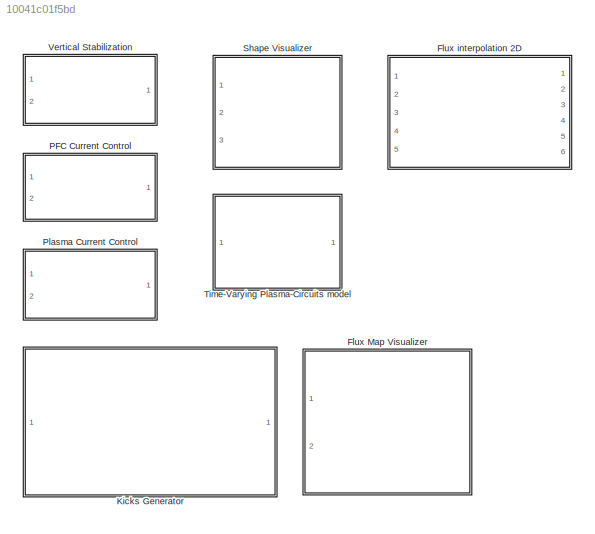
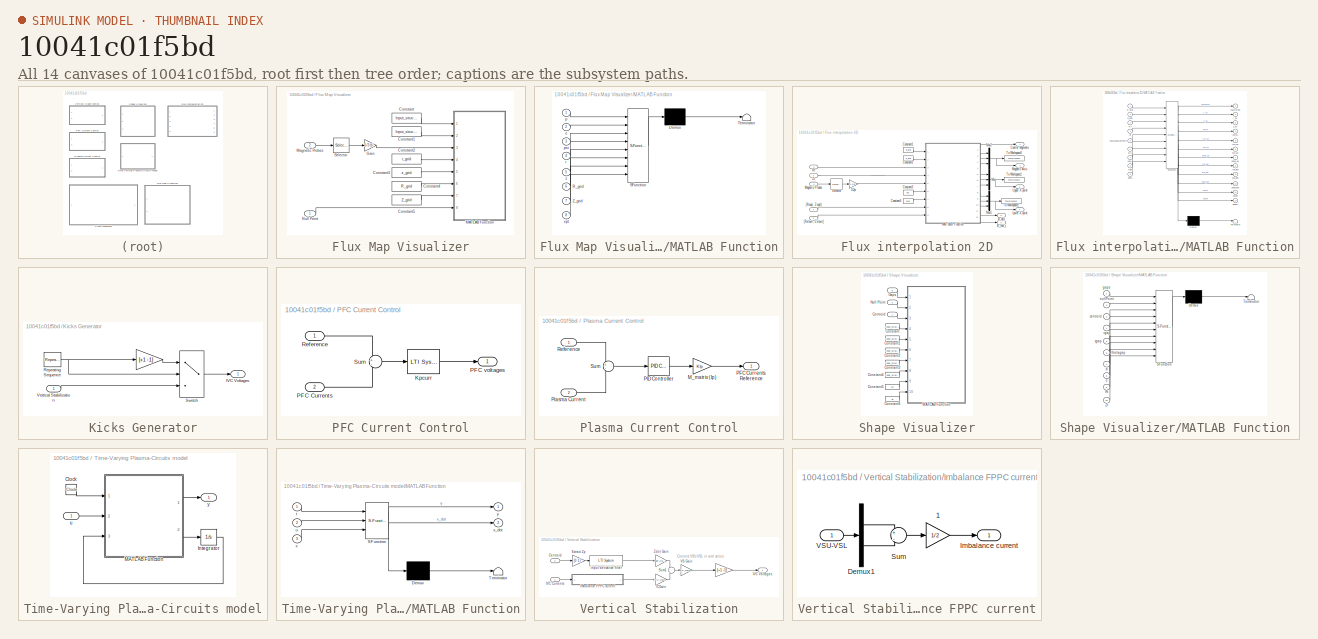
[diagram: thumbnail index - all 14 canvases of the model, root first then tree order]
MODEL slx_10041c01f5bd
KIND library
CONFIG AbsTol = auto
CONFIG EnableMultiTasking = on
CONFIG FixedStep = auto
CONFIG MaxStep = auto
CONFIG MinStep = auto
CONFIG RelTol = 1e-3
CONFIG SampleTimeConstraint = Unconstrained
CONFIG Solver = ode45
CONFIG SolverName = ode45
CONFIG StartTime = 0.0
CONFIG StopTime = 10.0
BLOCK [SubSystem] Flux Map Visualizer
  InitFcn = oldDir = pwd;\ncd ./flux_grid_functions\n[r_grid, z_grid, R_grid, Z_grid, F0, idxGrid] = initFluxGrid(Input_struct,y_np,y_type, mag, 0);\ncd(oldDir);
  Ports = [2]
  RequestExecContextInheritance = off
  StartFcn = % fig_grid= figure()
BLOCK [Constant] Flux Map Visualizer/Constant
  Value = Input_struct.p
BLOCK [Constant] Flux Map Visualizer/Constant1
  Value = Input_struct.e
BLOCK [Constant] Flux Map Visualizer/Constant2
  Value = r_grid
BLOCK [Constant] Flux Map Visualizer/Constant3
  Value = z_grid
BLOCK [Constant] Flux Map Visualizer/Constant4
  Value = R_grid
BLOCK [Constant] Flux Map Visualizer/Constant5
  Value = Z_grid
BLOCK [Gain] Flux Map Visualizer/Gain
  Gain = 1/2/pi
  OutDataTypeStr = Inherit: Inherit via internal rule
  ParamDataTypeStr = Inherit: Inherit via internal rule
  SaturateOnIntegerOverflow = off
BLOCK [SubSystem] Flux Map Visualizer/MATLAB Function
  ErrorFcn = Stateflow.Translate.translate
  PermitHierarchicalResolution = ExplicitOnly
  Ports = [8]
  RequestExecContextInheritance = off
  SFBlockType = MATLAB Function
  SystemSampleTime = 5e-2
  TreatAsAtomicUnit = on
BLOCK [Demux] Flux Map Visualizer/MATLAB Function/ Demux 
  Outputs = 1
  Ports = [1, 1]
BLOCK [S-Function] Flux Map Visualizer/MATLAB Function/ SFunction 
  EnableBusSupport = off
  FunctionName = sf_sfun
  PortCounts = [8 1]
  Ports = [8, 1]
  SFcnIsStateOwnerBlock = off
  SFunctionDeploymentMode = off
  Tag = Stateflow S-Function JT60SA_Magnetic_Control 3
BLOCK [Terminator] Flux Map Visualizer/MATLAB Function/ Terminator 
BLOCK [Inport] Flux Map Visualizer/MATLAB Function/R_grid
  IconDisplay = Port number
  Port = 6
BLOCK [Inport] Flux Map Visualizer/MATLAB Function/Z_grid
  IconDisplay = Port number
  Port = 7
BLOCK [Inport] Flux Map Visualizer/MATLAB Function/e
  IconDisplay = Port number
  Port = 2
BLOCK [Inport] Flux Map Visualizer/MATLAB Function/p
  IconDisplay = Port number
BLOCK [Inport] Flux Map Visualizer/MATLAB Function/psi
  IconDisplay = Port number
  Port = 3
BLOCK [Inport] Flux Map Visualizer/MATLAB Function/r
  IconDisplay = Port number
  Port = 4
BLOCK [Inport] Flux Map Visualizer/MATLAB Function/xpt
  IconDisplay = Port number
  Port = 8
BLOCK [Inport] Flux Map Visualizer/MATLAB Function/z
  IconDisplay = Port number
  Port = 5
BLOCK [Inport] Flux Map Visualizer/Magnetic Probes
  IconDisplay = Port number
  Port = 2
BLOCK [Inport] Flux Map Visualizer/Null Point
  IconDisplay = Port number
BLOCK [Selector] Flux Map Visualizer/Selector
  IndexOptions = Index vector (dialog)
  Indices = idxGrid
  InputPortWidth = nMag
  OutputSizes = 1
  Ports = [1, 1]
BLOCK [SubSystem] Flux interpolation 2D
  Description = This block allows to interpolate the flux map over a set of given control points.\n\nThe user must define Rt and Zt, which are 2 vectors of 20 elements which contain the coordinates\nof the desired control points (only non-zero coordinate are used). Furthermore, the user must\ndefine the desired position for the upper and lower X-points, [Rxupt, Zxupt] and [Rxlowt, Zxlowt]. \nThe target points may be t...<+12ch>
  InitFcn = oldDir = pwd;\ncd ./flux_grid_functions\n[r_grid, z_grid, R_grid, Z_grid, F0, idxGrid] = initFluxGrid(Input_struct,y_np,y_type, mag, 0);\n\nxpLow_guess = [Null0(1) -abs(Null0(2))];\n[RBoxL, ZBoxL, irowL, icolL, maskL] = initXBox(xpLow_guess, R_grid, Z_grid);\niLow = [irowL; icolL];\n\nxpUp_guess = [Null0(1) +abs(Null0(2))];\n[RBoxU, ZBoxU, irowU, icolU, maskU] = initXBox(xpUp_guess, R_grid, Z_grid);\niUp = ...<+28ch>
  Ports = [5, 6]
  RequestExecContextInheritance = off
BLOCK [Gain] Flux interpolation 2D/1//2pi
  Gain = 1/2/pi
  OutDataTypeStr = Inherit: Inherit via internal rule
  ParamDataTypeStr = Inherit: Inherit via internal rule
  SaturateOnIntegerOverflow = off
BLOCK [Outport] Flux interpolation 2D/B_low_t
  IconDisplay = Port number
  Port = 6
BLOCK [Outport] Flux interpolation 2D/B_up_t
  IconDisplay = Port number
  Port = 5
BLOCK [Constant] Flux interpolation 2D/Constant1
  Value = R_grid
BLOCK [Constant] Flux interpolation 2D/Constant2
  Value = Z_grid
BLOCK [Constant] Flux interpolation 2D/Constant3
  Value = iUp
BLOCK [Constant] Flux interpolation 2D/Constant4
  Value = iLow
BLOCK [Outport] Flux interpolation 2D/Control segments
  IconDisplay = Port number
BLOCK [Outport] Flux interpolation 2D/Lower X-point
  IconDisplay = Port number
  Port = 4
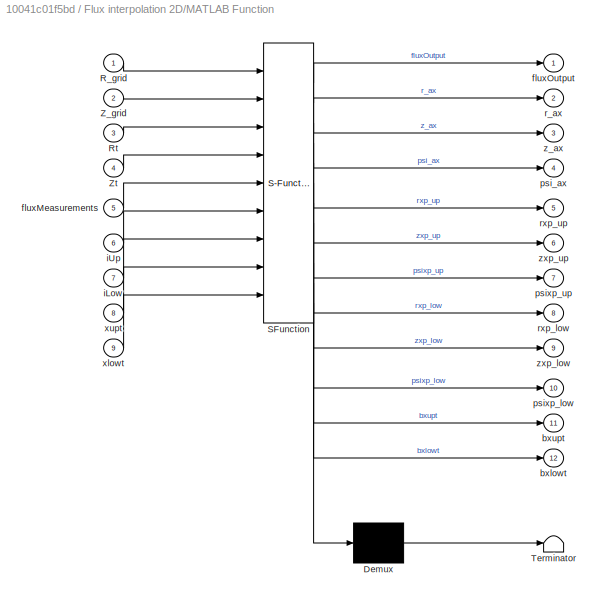
BLOCK [SubSystem] Flux interpolation 2D/MATLAB Function
  ErrorFcn = Stateflow.Translate.translate
  PermitHierarchicalResolution = ExplicitOnly
  Ports = [9, 12]
  RequestExecContextInheritance = off
  SFBlockType = MATLAB Function
  TreatAsAtomicUnit = on
BLOCK [Demux] Flux interpolation 2D/MATLAB Function/ Demux 
  Outputs = 1
  Ports = [1, 1]
BLOCK [S-Function] Flux interpolation 2D/MATLAB Function/ SFunction 
  EnableBusSupport = off
  FunctionName = sf_sfun
  PortCounts = [9 13]
  Ports = [9, 13]
  SFcnIsStateOwnerBlock = off
  SFunctionDeploymentMode = off
  Tag = Stateflow S-Function JT60SA_Magnetic_Control 4
BLOCK [Terminator] Flux interpolation 2D/MATLAB Function/ Terminator 
BLOCK [Inport] Flux interpolation 2D/MATLAB Function/R_grid
  IconDisplay = Port number
BLOCK [Inport] Flux interpolation 2D/MATLAB Function/Rt
  IconDisplay = Port number
  Port = 3
BLOCK [Inport] Flux interpolation 2D/MATLAB Function/Z_grid
  IconDisplay = Port number
  Port = 2
BLOCK [Inport] Flux interpolation 2D/MATLAB Function/Zt
  IconDisplay = Port number
  Port = 4
BLOCK [Outport] Flux interpolation 2D/MATLAB Function/bxlowt
  IconDisplay = Port number
  Port = 12
BLOCK [Outport] Flux interpolation 2D/MATLAB Function/bxupt
  IconDisplay = Port number
  Port = 11
BLOCK [Inport] Flux interpolation 2D/MATLAB Function/fluxMeasurements
  IconDisplay = Port number
  Port = 5
BLOCK [Outport] Flux interpolation 2D/MATLAB Function/fluxOutput
  IconDisplay = Port number
BLOCK [Inport] Flux interpolation 2D/MATLAB Function/iLow
  IconDisplay = Port number
  Port = 7
BLOCK [Inport] Flux interpolation 2D/MATLAB Function/iUp
  IconDisplay = Port number
  Port = 6
BLOCK [Outport] Flux interpolation 2D/MATLAB Function/psi_ax
  IconDisplay = Port number
  Port = 4
BLOCK [Outport] Flux interpolation 2D/MATLAB Function/psixp_low
  IconDisplay = Port number
  Port = 10
BLOCK [Outport] Flux interpolation 2D/MATLAB Function/psixp_up
  IconDisplay = Port number
  Port = 7
BLOCK [Outport] Flux interpolation 2D/MATLAB Function/r_ax
  IconDisplay = Port number
  Port = 2
BLOCK [Outport] Flux interpolation 2D/MATLAB Function/rxp_low
  IconDisplay = Port number
  Port = 8
BLOCK [Outport] Flux interpolation 2D/MATLAB Function/rxp_up
  IconDisplay = Port number
  Port = 5
BLOCK [Inport] Flux interpolation 2D/MATLAB Function/xlowt
  IconDisplay = Port number
  Port = 9
BLOCK [Inport] Flux interpolation 2D/MATLAB Function/xupt
  IconDisplay = Port number
  Port = 8
BLOCK [Outport] Flux interpolation 2D/MATLAB Function/z_ax
  IconDisplay = Port number
  Port = 3
BLOCK [Outport] Flux interpolation 2D/MATLAB Function/zxp_low
  IconDisplay = Port number
  Port = 9
BLOCK [Outport] Flux interpolation 2D/MATLAB Function/zxp_up
  IconDisplay = Port number
  Port = 6
BLOCK [Outport] Flux interpolation 2D/Magnetic Axis
  IconDisplay = Port number
  Port = 2
BLOCK [Inport] Flux interpolation 2D/Magnetic Probes
  IconDisplay = Port number
BLOCK [Mux] Flux interpolation 2D/Mux
  DisplayOption = bar
  Inputs = 3
  Ports = [3, 1]
BLOCK [Mux] Flux interpolation 2D/Mux1
  DisplayOption = bar
  Inputs = 3
  Ports = [3, 1]
BLOCK [Mux] Flux interpolation 2D/Mux2
  DisplayOption = bar
  Inputs = 3
  Ports = [3, 1]
BLOCK [Inport] Flux interpolation 2D/Rt
  IconDisplay = Port number
  Port = 2
BLOCK [Selector] Flux interpolation 2D/Selector
  IndexOptions = Index vector (dialog)
  Indices = idxGrid
  InputPortWidth = nMag
  OutputSizes = 1
  Ports = [1, 1]
BLOCK [ToWorkspace] Flux interpolation 2D/To Workspace1
  FixptAsFi = on
  MaxDataPoints = inf
  Ports = [1]
  SampleTime = -1
  SaveFormat = Structure With Time
  VariableName = grid_xup
BLOCK [ToWorkspace] Flux interpolation 2D/To Workspace2
  FixptAsFi = on
  MaxDataPoints = inf
  Ports = [1]
  SampleTime = -1
  SaveFormat = Structure With Time
  VariableName = grid_xlow
BLOCK [ToWorkspace] Flux interpolation 2D/To Workspace3
  FixptAsFi = on
  MaxDataPoints = inf
  Ports = [1]
  SampleTime = -1
  SaveFormat = Structure With Time
  VariableName = grid_ax
BLOCK [Outport] Flux interpolation 2D/Upper X-point
  IconDisplay = Port number
  Port = 3
BLOCK [Inport] Flux interpolation 2D/Zt
  IconDisplay = Port number
  Port = 3
BLOCK [Inport] Flux interpolation 2D/[Rxlowt, Zxlowt]
  IconDisplay = Port number
  Port = 5
BLOCK [Inport] Flux interpolation 2D/[Rxupt, Zxupt]
  IconDisplay = Port number
  Port = 4
BLOCK [SubSystem] Kicks Generator
  Ports = [1, 1]
  RequestExecContextInheritance = off
BLOCK [Gain] Kicks Generator/    
  Gain = [+1 -1]
  OutDataTypeStr = Inherit: Inherit via internal rule
  ParamDataTypeStr = Inherit: Inherit via internal rule
  SaturateOnIntegerOverflow = off
BLOCK [Outport] Kicks Generator/IVC Voltages
  IconDisplay = Port number
BLOCK [Reference] Kicks Generator/Repeating Sequence  REF=simulink/Sources/Repeating
Sequence
  Ports = [0, 1]
  SourceBlock = simulink/Sources/Repeating\nSequence
  SourceProductBaseCode = SL
  SourceProductName = Simulink
  SourceType = Repeating table
BLOCK [Switch] Kicks Generator/Switch
  Criteria = u2 ~= 0
  InputSameDT = off
  SaturateOnIntegerOverflow = off
BLOCK [Inport] Kicks Generator/Vertical Stabilization
  IconDisplay = Port number
BLOCK [SubSystem] PFC Current Control
  InitFcn = % PFC Current Control\nKpcurr = [5.7832    1.2410     0           0           0            0          0.8592   0            0            0\n               1.2410    5.7862    1.2432    0           0            0          0           0            0            0\n               0            1.2432    5.7865    1.2414   0            0          0           0            0            0\n               0    ...<+872ch>
  Ports = [2, 1]
  RequestExecContextInheritance = off
BLOCK [Reference] PFC Current Control/Kpcurr  REF=cstblocks/LTI System
  Ports = [1, 1]
  SourceBlock = cstblocks/LTI System
  SourceProductBaseCode = CT
  SourceProductName = Control System Toolbox
  SourceType = LTI Block
BLOCK [Inport] PFC Current Control/PFC Currents
  IconDisplay = Port number
  Port = 2
BLOCK [Outport] PFC Current Control/PFC voltages
  IconDisplay = Port number
BLOCK [Inport] PFC Current Control/Reference
  IconDisplay = Port number
BLOCK [Sum] PFC Current Control/Sum
  IconShape = round
  InputSameDT = off
  Inputs = +-
  OutDataTypeStr = Inherit: Inherit via internal rule
  Ports = [2, 1]
  SaturateOnIntegerOverflow = off
BLOCK [SubSystem] Plasma Current Control
  InitFcn = % Ip Control\n KIp= [-0.4984  -0.4327  -0.4393 -0.4969  -0.0241 ...\n        -0.0268  -0.2920  -0.1886  -0.0465  -0.0151]'; % Transformer currents pattern
  Ports = [2, 1]
  RequestExecContextInheritance = off
BLOCK [Gain] Plasma Current Control/M_matrix (Ip)
  Gain = KIp
  OutDataTypeStr = Inherit: Inherit via internal rule
  ParamDataTypeStr = Inherit: Inherit via internal rule
  SaturateOnIntegerOverflow = off
BLOCK [Outport] Plasma Current Control/PFC Currents Reference
  IconDisplay = Port number
BLOCK [Reference] Plasma Current Control/PID Controller  REF=simulink/Continuous/PID Controller
  Ports = [1, 1]
  SourceBlock = simulink/Continuous/PID Controller
  SourceProductBaseCode = SL
  SourceProductName = Simulink
  SourceType = PID 1dof
BLOCK [Inport] Plasma Current Control/Plasma Current
  IconDisplay = Port number
  Port = 2
BLOCK [Inport] Plasma Current Control/Reference
  IconDisplay = Port number
BLOCK [Sum] Plasma Current Control/Sum
  IconShape = round
  InputSameDT = off
  Inputs = +-
  OutDataTypeStr = Inherit: Inherit via internal rule
  Ports = [2, 1]
  SaturateOnIntegerOverflow = off
BLOCK [SubSystem] Shape Visualizer
  Ports = [3]
  RequestExecContextInheritance = off
  StartFcn = plasmaShape = figure('Position',[800, 0, 450, 650]);\nxlabel('R');\nylabel('Z');\n\n%h = pdemesh(Input_struct.p,Input_struct.e,[]);\n%set(h,'Color','black');\n%axis([0, 6, -4.5, 4.5]);\n%axis equal;\n%hold on\n\n%plasmaShape.UserData.plot = plot(zeros(nGaps,1), zeros(nGaps,1));
BLOCK [Inport] Shape Visualizer/Centroid
  IconDisplay = Port number
  OutDataTypeStr = double
  SampleTime = .05
BLOCK [Constant] Shape Visualizer/Constant
  Value = Input_struct.r_sens_gap;
BLOCK [Constant] Shape Visualizer/Constant1
  Value = Input_struct.z_sens_gap;
BLOCK [Constant] Shape Visualizer/Constant2
  Value = Input_struct.theta_sens_gap_deg
BLOCK [Constant] Shape Visualizer/Constant3
  Value = Input_struct.p
BLOCK [Constant] Shape Visualizer/Constant4
  Value = Input_struct.e
BLOCK [Constant] Shape Visualizer/Constant5
  Value = Rt
BLOCK [Constant] Shape Visualizer/Constant6
  Value = Zt
BLOCK [Inport] Shape Visualizer/Gaps
  IconDisplay = Port number
  OutDataTypeStr = double
  Port = 3
  SampleTime = .05
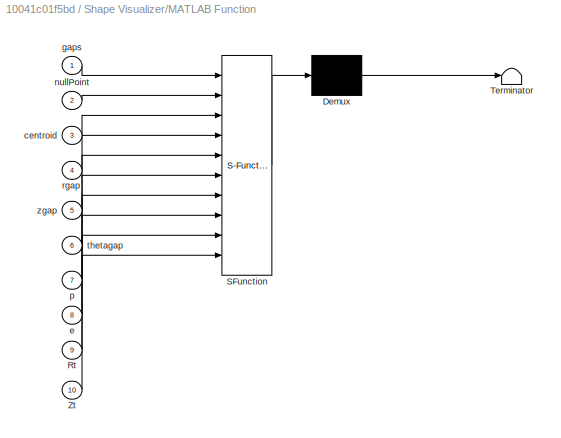
BLOCK [SubSystem] Shape Visualizer/MATLAB Function
  ErrorFcn = Stateflow.Translate.translate
  PermitHierarchicalResolution = ExplicitOnly
  Ports = [10]
  RequestExecContextInheritance = off
  SFBlockType = MATLAB Function
  TreatAsAtomicUnit = on
BLOCK [Demux] Shape Visualizer/MATLAB Function/ Demux 
  Outputs = 1
  Ports = [1, 1]
BLOCK [S-Function] Shape Visualizer/MATLAB Function/ SFunction 
  EnableBusSupport = off
  FunctionName = sf_sfun
  PortCounts = [10 1]
  Ports = [10, 1]
  SFcnIsStateOwnerBlock = off
  SFunctionDeploymentMode = off
  Tag = Stateflow S-Function JT60SA_Magnetic_Control 2
BLOCK [Terminator] Shape Visualizer/MATLAB Function/ Terminator 
BLOCK [Inport] Shape Visualizer/MATLAB Function/Rt
  IconDisplay = Port number
  Port = 9
BLOCK [Inport] Shape Visualizer/MATLAB Function/Zt
  IconDisplay = Port number
  Port = 10
BLOCK [Inport] Shape Visualizer/MATLAB Function/centroid
  IconDisplay = Port number
  Port = 3
BLOCK [Inport] Shape Visualizer/MATLAB Function/e
  IconDisplay = Port number
  Port = 8
BLOCK [Inport] Shape Visualizer/MATLAB Function/gaps
  IconDisplay = Port number
BLOCK [Inport] Shape Visualizer/MATLAB Function/nullPoint
  IconDisplay = Port number
  Port = 2
BLOCK [Inport] Shape Visualizer/MATLAB Function/p
  IconDisplay = Port number
  Port = 7
BLOCK [Inport] Shape Visualizer/MATLAB Function/rgap
  IconDisplay = Port number
  Port = 4
BLOCK [Inport] Shape Visualizer/MATLAB Function/thetagap
  IconDisplay = Port number
  Port = 6
BLOCK [Inport] Shape Visualizer/MATLAB Function/zgap
  IconDisplay = Port number
  Port = 5
BLOCK [Inport] Shape Visualizer/Null Point
  IconDisplay = Port number
  OutDataTypeStr = double
  Port = 2
  SampleTime = .05
BLOCK [SubSystem] Time-Varying Plasma-Circuits model
  CopyFcn = if ~exist('equ_struct', 'var')\n  try\n      firstEquil = [pathName, fileName];\n  catch\n  end\n\n  addpath(['.' filesep 'time-varying_model'])\n  gen_equil_struct;\nelse\n  warndlg('Equilibria structure already exists!')\nend
  DeleteFcn = clear equ_struct
  InitFcn = if ~exist('equ_struct', 'var')\n  try\n      firstEquil = [pathName, fileName];\n  catch\n  end\n\n  addpath(['.' filesep 'time-varying_model'])\n  gen_equil_struct;\n\nelse\n  warndlg('Equilibria structure already exists!');\nend
  Ports = [1, 1]
  RequestExecContextInheritance = off
BLOCK [Clock] Time-Varying Plasma-Circuits model/Clock
BLOCK [Integrator] Time-Varying Plasma-Circuits model/Integrator
  Ports = [1, 1]
BLOCK [SubSystem] Time-Varying Plasma-Circuits model/MATLAB Function
  ErrorFcn = Stateflow.Translate.translate
  PermitHierarchicalResolution = ExplicitOnly
  Ports = [3, 2]
  RequestExecContextInheritance = off
  SFBlockType = MATLAB Function
  TreatAsAtomicUnit = on
BLOCK [Demux] Time-Varying Plasma-Circuits model/MATLAB Function/ Demux 
  Outputs = 1
  Ports = [1, 1]
BLOCK [S-Function] Time-Varying Plasma-Circuits model/MATLAB Function/ SFunction 
  EnableBusSupport = off
  FunctionName = sf_sfun
  Parameters = equ_struct
  PortCounts = [3 3]
  Ports = [3, 3]
  SFcnIsStateOwnerBlock = off
  SFunctionDeploymentMode = off
  Tag = Stateflow S-Function JT60SA_Magnetic_Control 1
BLOCK [Terminator] Time-Varying Plasma-Circuits model/MATLAB Function/ Terminator 
BLOCK [Inport] Time-Varying Plasma-Circuits model/MATLAB Function/t
  IconDisplay = Port number
BLOCK [Inport] Time-Varying Plasma-Circuits model/MATLAB Function/u
  IconDisplay = Port number
  Port = 2
BLOCK [Inport] Time-Varying Plasma-Circuits model/MATLAB Function/x
  IconDisplay = Port number
  Port = 3
BLOCK [Outport] Time-Varying Plasma-Circuits model/MATLAB Function/x_dot
  IconDisplay = Port number
  Port = 2
BLOCK [Outport] Time-Varying Plasma-Circuits model/MATLAB Function/y
  IconDisplay = Port number
BLOCK [Inport] Time-Varying Plasma-Circuits model/u
  IconDisplay = Port number
BLOCK [Outport] Time-Varying Plasma-Circuits model/y
  IconDisplay = Port number
BLOCK [SubSystem] Vertical Stabilization
  InitFcn = % Vertical Stabilization\nZdot_Gain = 20;\nIVC_Gain  = -0.0076;\nVS_Gain   = -40;\nderivativeFilter = tf([1, 0], [1/1000, 1]);
  Ports = [2, 1]
  RequestExecContextInheritance = off
BLOCK [Gain] Vertical Stabilization/    
  Gain = [+1 -1]
  OutDataTypeStr = Inherit: Inherit via internal rule
  ParamDataTypeStr = Inherit: Inherit via internal rule
  SaturateOnIntegerOverflow = off
BLOCK [Inport] Vertical Stabilization/Centroid
  IconDisplay = Port number
  Port = 2
BLOCK [Gain] Vertical Stabilization/Extract Zp
  Gain = [0 1]
  Multiplication = Matrix(K*u)
  OutDataTypeStr = Inherit: Inherit via internal rule
  ParamDataTypeStr = Inherit: Inherit via internal rule
  SaturateOnIntegerOverflow = off
BLOCK [Gain] Vertical Stabilization/ICGain
  Gain = IVC_Gain
  OutDataTypeStr = Inherit: Inherit via internal rule
  ParamDataTypeStr = Inherit: Inherit via internal rule
  SaturateOnIntegerOverflow = off
BLOCK [Inport] Vertical Stabilization/IVC Currents
  IconDisplay = Port number
BLOCK [Outport] Vertical Stabilization/IVC Voltages
  IconDisplay = Port number
BLOCK [SubSystem] Vertical Stabilization/Imbalance FPPC current
  Ports = [1, 1]
  RequestExecContextInheritance = off
BLOCK [Gain] Vertical Stabilization/Imbalance FPPC current/    1
  Gain = 1/2
  OutDataTypeStr = Inherit: Inherit via internal rule
  ParamDataTypeStr = Inherit: Inherit via internal rule
  SaturateOnIntegerOverflow = off
BLOCK [Demux] Vertical Stabilization/Imbalance FPPC current/Demux1
  DisplayOption = bar
  Outputs = 2
  Ports = [1, 2]
BLOCK [Outport] Vertical Stabilization/Imbalance FPPC current/Imbalance current
  IconDisplay = Port number
BLOCK [Sum] Vertical Stabilization/Imbalance FPPC current/Sum
  IconShape = round
  InputSameDT = off
  Inputs = +|-
  OutDataTypeStr = Inherit: Inherit via internal rule
  Ports = [2, 1]
  SaturateOnIntegerOverflow = off
BLOCK [Inport] Vertical Stabilization/Imbalance FPPC current/VSU-VSL
  IconDisplay = Port number
BLOCK [Sum] Vertical Stabilization/Sum1
  IconShape = round
  InputSameDT = off
  Inputs = +|+
  OutDataTypeStr = Inherit: Inherit via internal rule
  Ports = [2, 1]
  SaturateOnIntegerOverflow = off
BLOCK [Gain] Vertical Stabilization/VS Gain
  Gain = VS_Gain
  OutDataTypeStr = Inherit: Inherit via internal rule
  ParamDataTypeStr = Inherit: Inherit via internal rule
  SaturateOnIntegerOverflow = off
BLOCK [Gain] Vertical Stabilization/Zdot Gain
  Gain = Zdot_Gain*Ip0
  OutDataTypeStr = Inherit: Inherit via internal rule
  ParamDataTypeStr = Inherit: Inherit via internal rule
  SaturateOnIntegerOverflow = off
BLOCK [Reference] Vertical Stabilization/input derivative filter  REF=cstblocks/LTI System
  Ports = [1, 1]
  SourceBlock = cstblocks/LTI System
  SourceProductBaseCode = CT
  SourceProductName = Control System Toolbox
  SourceType = LTI Block
ANNOTATION Vertical Stabilization: Connect VSU-VSL in anti series
LINE Flux Map Visualizer/Constant1:1 -> Flux Map Visualizer/MATLAB Function:2
LINE Flux Map Visualizer/Constant2:1 -> Flux Map Visualizer/MATLAB Function:4
LINE Flux Map Visualizer/Constant3:1 -> Flux Map Visualizer/MATLAB Function:5
LINE Flux Map Visualizer/Constant4:1 -> Flux Map Visualizer/MATLAB Function:6
LINE Flux Map Visualizer/Constant5:1 -> Flux Map Visualizer/MATLAB Function:7
LINE Flux Map Visualizer/Constant:1 -> Flux Map Visualizer/MATLAB Function:1
LINE Flux Map Visualizer/Gain:1 -> Flux Map Visualizer/MATLAB Function:3
LINE Flux Map Visualizer/Magnetic Probes:1 -> Flux Map Visualizer/Selector:1
LINE Flux Map Visualizer/Null Point:1 -> Flux Map Visualizer/MATLAB Function:8
LINE Flux Map Visualizer/Selector:1 -> Flux Map Visualizer/Gain:1
LINE Flux interpolation 2D/1//2pi:1 -> Flux interpolation 2D/MATLAB Function:5
LINE Flux interpolation 2D/Constant1:1 -> Flux interpolation 2D/MATLAB Function:1
LINE Flux interpolation 2D/Constant2:1 -> Flux interpolation 2D/MATLAB Function:2
LINE Flux interpolation 2D/Constant3:1 -> Flux interpolation 2D/MATLAB Function:6
LINE Flux interpolation 2D/Constant4:1 -> Flux interpolation 2D/MATLAB Function:7
LINE Flux interpolation 2D/MATLAB Function:1 -> Flux interpolation 2D/Control segments:1
LINE Flux interpolation 2D/MATLAB Function:10 -> Flux interpolation 2D/Mux1:3
LINE Flux interpolation 2D/MATLAB Function:11 -> Flux interpolation 2D/B_up_t:1
LINE Flux interpolation 2D/MATLAB Function:12 -> Flux interpolation 2D/B_low_t:1
LINE Flux interpolation 2D/MATLAB Function:2 -> Flux interpolation 2D/Mux2:1
LINE Flux interpolation 2D/MATLAB Function:3 -> Flux interpolation 2D/Mux2:2
LINE Flux interpolation 2D/MATLAB Function:4 -> Flux interpolation 2D/Mux2:3
LINE Flux interpolation 2D/MATLAB Function:5 -> Flux interpolation 2D/Mux:1
LINE Flux interpolation 2D/MATLAB Function:6 -> Flux interpolation 2D/Mux:2
LINE Flux interpolation 2D/MATLAB Function:7 -> Flux interpolation 2D/Mux:3
LINE Flux interpolation 2D/MATLAB Function:8 -> Flux interpolation 2D/Mux1:1
LINE Flux interpolation 2D/MATLAB Function:9 -> Flux interpolation 2D/Mux1:2
LINE Flux interpolation 2D/Magnetic Probes:1 -> Flux interpolation 2D/Selector:1
NET Flux interpolation 2D/Mux1:1 -> Flux interpolation 2D/Lower X-point:1, Flux interpolation 2D/To Workspace2:1
NET Flux interpolation 2D/Mux2:1 -> Flux interpolation 2D/Magnetic Axis:1, Flux interpolation 2D/To Workspace3:1
NET Flux interpolation 2D/Mux:1 -> Flux interpolation 2D/To Workspace1:1, Flux interpolation 2D/Upper X-point:1
LINE Flux interpolation 2D/Rt:1 -> Flux interpolation 2D/MATLAB Function:3
LINE Flux interpolation 2D/Selector:1 -> Flux interpolation 2D/1//2pi:1
LINE Flux interpolation 2D/Zt:1 -> Flux interpolation 2D/MATLAB Function:4
LINE Flux interpolation 2D/[Rxlowt, Zxlowt]:1 -> Flux interpolation 2D/MATLAB Function:9
LINE Flux interpolation 2D/[Rxupt, Zxupt]:1 -> Flux interpolation 2D/MATLAB Function:8
LINE Kicks Generator/    :1 -> Kicks Generator/Switch:1
NET Kicks Generator/Repeating Sequence:1 -> Kicks Generator/    :1, Kicks Generator/Switch:2
LINE Kicks Generator/Switch:1 -> Kicks Generator/IVC Voltages:1
LINE Kicks Generator/Vertical Stabilization:1 -> Kicks Generator/Switch:3
LINE PFC Current Control/Kpcurr:1 -> PFC Current Control/PFC voltages:1
LINE PFC Current Control/PFC Currents:1 -> PFC Current Control/Sum:2
LINE PFC Current Control/Reference:1 -> PFC Current Control/Sum:1
LINE PFC Current Control/Sum:1 -> PFC Current Control/Kpcurr:1
LINE Shape Visualizer/Centroid:1 -> Shape Visualizer/MATLAB Function:3
LINE Shape Visualizer/Constant1:1 -> Shape Visualizer/MATLAB Function:5
LINE Shape Visualizer/Constant2:1 -> Shape Visualizer/MATLAB Function:6
LINE Shape Visualizer/Constant3:1 -> Shape Visualizer/MATLAB Function:7
LINE Shape Visualizer/Constant4:1 -> Shape Visualizer/MATLAB Function:8
LINE Shape Visualizer/Constant5:1 -> Shape Visualizer/MATLAB Function:9
LINE Shape Visualizer/Constant6:1 -> Shape Visualizer/MATLAB Function:10
LINE Shape Visualizer/Constant:1 -> Shape Visualizer/MATLAB Function:4
LINE Shape Visualizer/Gaps:1 -> Shape Visualizer/MATLAB Function:1
LINE Shape Visualizer/Null Point:1 -> Shape Visualizer/MATLAB Function:2
LINE Time-Varying Plasma-Circuits model/Clock:1 -> Time-Varying Plasma-Circuits model/MATLAB Function:1
LINE Time-Varying Plasma-Circuits model/Integrator:1 -> Time-Varying Plasma-Circuits model/MATLAB Function:3
LINE Time-Varying Plasma-Circuits model/MATLAB Function:1 -> Time-Varying Plasma-Circuits model/y:1
LINE Time-Varying Plasma-Circuits model/MATLAB Function:2 -> Time-Varying Plasma-Circuits model/Integrator:1
LINE Time-Varying Plasma-Circuits model/u:1 -> Time-Varying Plasma-Circuits model/MATLAB Function:2
note: NET lines group one-source signal fan-out (src -> all destinations, sorted); 1:1 wires keep LINE
CHART Time-Varying 
Plasma-Circuits model/MATLAB Function states=1 transitions=1
  STATE_LABEL 'eML_blk_kernel()'
  STATE_LABEL "SCRIPT:\nfunction [y,x_dot] = fcn(equ_struct,t,u,x)\n%#codegen\ncoder.extrinsic('evalin');\ncoder.extrinsic('inv');\ncoder.extrinsic('horzcat');\n% coder.extrinsic('mtimes');\n% coder.extrinsic('mrdivide');\n% coder.extrinsic('plus');\n% coder.extrinsic('minus');\n\nS = equ_struct;\ny = zeros(equ_struct.sizeOut,1);\nx_dot = zeros(equ_struct.sizeState,1);\n\nL = zeros(size(S.L(:,:,1)));\nR = zeros(size(S.R(:,:,1))...<+2205ch>"
CHART Shape Visualizer/MATLAB Function states=1 transitions=1
  STATE_LABEL 'eML_blk_kernel()'
  STATE_LABEL "SCRIPT:\nfunction fcn(gaps, nullPoint, centroid, rgap, zgap, thetagap, p, e, Rt, Zt)\ncoder.extrinsic('pdemesh');\ncoder.extrinsic('patch');\n\n%#codegen\nrx = nullPoint(1);\nzx = nullPoint(2);\n\nrp = centroid(1);\nzp = centroid(2);\n\nr = rgap+gaps.*cosd(thetagap);\nz = zgap+gaps.*sind(thetagap);\n\nrNew = r(~isnan(r)); % remove NaNs\nzNew = z(~isnan(r));\n\n\n%% Manipulate raw data\n\n% strike points coordinates\nif...<+1559ch>"
CHART Flux Map Visualizer/MATLAB Function states=1 transitions=1
  STATE_LABEL 'eML_blk_kernel()'
  STATE_LABEL "SCRIPT:\nfunction plotFluxMap(p,e,psi,r,z,R_grid,Z_grid,xpt)\n%#codegen\ncoder.extrinsic('pdemesh');\ncoder.extrinsic('fit');\ncoder.extrinsic('feval');\ncoder.extrinsic('contour');\n\npsib = xpt(3);\n\ngcf\nhold off\nh = pdemesh(p,e,[]);\nset(h,'Color','black');\naxis([0, 6, -4.5, 4.5]), axis equal, hold on\n\nsf = fit([r, z],psi,'linearinterp');      \nFF = feval(sf,R_grid,Z_grid);\ncontour(R_grid,Z_grid,FF, 10);...<+116ch>"
CHART Flux interpolation 2D/MATLAB Function states=1 transitions=1
  STATE_LABEL 'eML_blk_kernel()'
  STATE_LABEL 'SCRIPT:\nfunction [fluxOutput, ...\n          r_ax, z_ax, psi_ax, ...\n          rxp_up, zxp_up, psixp_up, ...\n          rxp_low, zxp_low, psixp_low, ...\n          bxupt, bxlowt] = ...\n          interpolateFluxes2D(R_grid,Z_grid, Rt,Zt, fluxMeasurements, iUp, iLow, xupt, xlowt)\n\nfluxOutput = zeros(20, 1);\n\n% Transform the output vector into a mesh\nNr = size(R_grid,2);\nNz = size(Z_grid,1);\nF = zeros(N...<+3608ch>'
